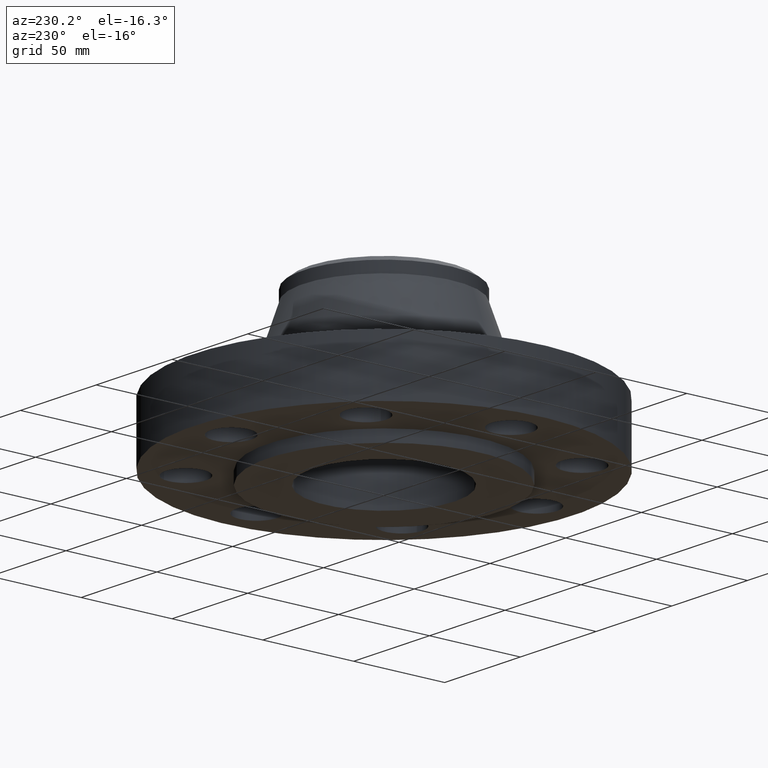
[diagram: clean part render]
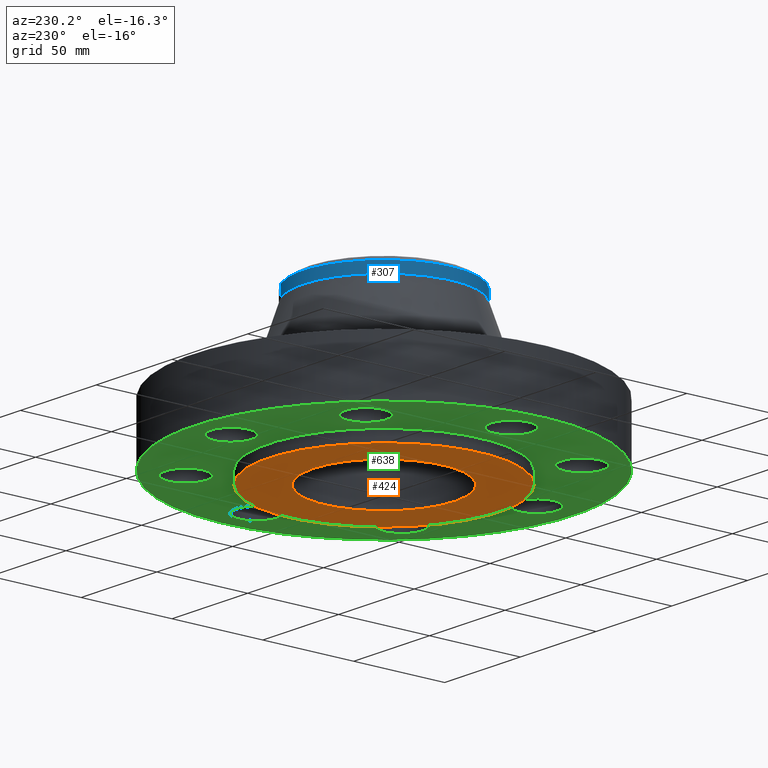
[diagram: same view with three faces highlighted in distinct colors, each labeled with its STEP entity id]
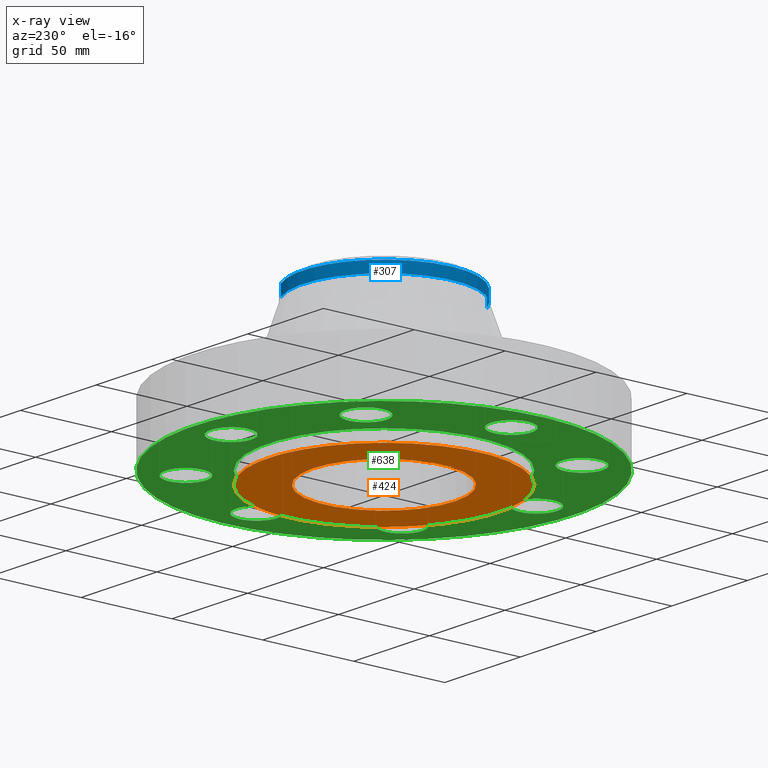
[diagram: x-ray of the same camera — body ghosted, the three highlighted faces saturated]
A machine part, auxiliary view with three faces highlighted in distinct colors.
The next image is the same camera in x-ray (body ghosted, the three faces saturated) — at least one of them is partly hidden behind the body in this view.
Their STEP definitions:

[orange] entity #424 — the highlighted planar face has unit normal (0, 0, -1).
#363=AXIS2_PLACEMENT_3D('Circle Axis2P3D',#361,#362,$) ;
#387=AXIS2_PLACEMENT_3D('Circle Axis2P3D',#385,#386,$) ;
#400=AXIS2_PLACEMENT_3D('Plane Axis2P3D',#397,#398,#399) ;
#404=AXIS2_PLACEMENT_3D('Circle Axis2P3D',#402,#403,$) ;
#413=AXIS2_PLACEMENT_3D('Circle Axis2P3D',#411,#412,$) ;
#358=CARTESIAN_POINT('Vertex',(0.735438776222,1.34621164995,-0.250000000001)) ;
#361=CARTESIAN_POINT('Axis2P3D Location',(0.,0.,-0.250000000001)) ;
#365=CARTESIAN_POINT('Vertex',(-0.735438776222,-1.34621164995,-0.250000000001)) ;
#385=CARTESIAN_POINT('Axis2P3D Location',(0.,0.,-0.250000000001)) ;
#397=CARTESIAN_POINT('Axis2P3D Location',(0.,1.53400000001,-0.250000000001)) ;
#402=CARTESIAN_POINT('Axis2P3D Location',(0.,0.,-0.250000000001)) ;
#406=CARTESIAN_POINT('Vertex',(-1.19856384652,-2.19395640473,-0.250000000001)) ;
#408=CARTESIAN_POINT('Vertex',(1.19856384652,2.19395640473,-0.250000000001)) ;
#411=CARTESIAN_POINT('Axis2P3D Location',(0.,0.,-0.250000000001)) ;
#362=DIRECTION('Axis2P3D Direction',(0.,0.,-0.0393700787402)) ;
#386=DIRECTION('Axis2P3D Direction',(0.,0.,-0.0393700787402)) ;
#398=DIRECTION('Axis2P3D Direction',(0.,0.,-0.0393700787402)) ;
#399=DIRECTION('Axis2P3D XDirection',(0.0393700787402,0.,0.)) ;
#403=DIRECTION('Axis2P3D Direction',(0.,0.,-0.0393700787402)) ;
#412=DIRECTION('Axis2P3D Direction',(0.,0.,-0.0393700787402)) ;
#417=ORIENTED_EDGE('',*,*,#410,.T.) ;
#418=ORIENTED_EDGE('',*,*,#415,.T.) ;
#421=ORIENTED_EDGE('',*,*,#367,.F.) ;
#422=ORIENTED_EDGE('',*,*,#389,.F.) ;
#423=FACE_BOUND('',#420,.T.) ;
#424=ADVANCED_FACE('PartBody',(#419,#423),#401,.T.) ;
#364=CIRCLE('generated circle',#363,1.53400000001) ;
#388=CIRCLE('generated circle',#387,1.53400000001) ;
#405=CIRCLE('generated circle',#404,2.50000000001) ;
#414=CIRCLE('generated circle',#413,2.50000000001) ;
#367=EDGE_CURVE('',#359,#366,#364,.T.) ;
#389=EDGE_CURVE('',#366,#359,#388,.T.) ;
#410=EDGE_CURVE('',#407,#409,#405,.T.) ;
#415=EDGE_CURVE('',#409,#407,#414,.T.) ;
#416=EDGE_LOOP('',(#417,#418)) ;
#420=EDGE_LOOP('',(#421,#422)) ;
#419=FACE_OUTER_BOUND('',#416,.T.) ;
#401=PLANE('',#400) ;
#359=VERTEX_POINT('',#358) ;
#366=VERTEX_POINT('',#365) ;
#407=VERTEX_POINT('',#406) ;
#409=VERTEX_POINT('',#408) ;

[blue] entity #307 — the highlighted cylindrical surface (partial cylindrical patch) has radius 44.45 mm, axis along (0, 0, -1).
#239=AXIS2_PLACEMENT_3D('Circle Axis2P3D',#237,#238,$) ;
#252=AXIS2_PLACEMENT_3D('Cylinder Axis2P3D',#249,#250,#251) ;
#290=AXIS2_PLACEMENT_3D('Circle Axis2P3D',#288,#289,$) ;
#297=AXIS2_PLACEMENT_3D('Circle Axis2P3D',#295,#296,$) ;
#215=CARTESIAN_POINT('Vertex',(0.838994692561,1.53576948331,2.90845634604)) ;
#222=CARTESIAN_POINT('Vertex',(-0.838994692561,-1.53576948331,2.90845634604)) ;
#237=CARTESIAN_POINT('Axis2P3D Location',(0.,0.,2.90845634604)) ;
#249=CARTESIAN_POINT('Axis2P3D Location',(0.,0.,1.50000000001)) ;
#254=CARTESIAN_POINT('Line Origine',(-0.838994692561,-1.53576948331,3.02656658226)) ;
#258=CARTESIAN_POINT('Vertex',(-0.838994692561,-1.53576948331,3.14467681848)) ;
#261=CARTESIAN_POINT('Line Origine',(0.838994692561,1.53576948331,3.02656658226)) ;
#265=CARTESIAN_POINT('Vertex',(0.838994692561,1.53576948331,3.14467681848)) ;
#288=CARTESIAN_POINT('Axis2P3D Location',(0.,0.,3.14467681848)) ;
#292=CARTESIAN_POINT('Vertex',(-0.838994692561,1.53576948331,3.14467681848)) ;
#295=CARTESIAN_POINT('Axis2P3D Location',(0.,0.,3.14467681848)) ;
#238=DIRECTION('Axis2P3D Direction',(0.,0.,-0.0393700787402)) ;
#250=DIRECTION('Axis2P3D Direction',(0.,0.,-0.0393700787402)) ;
#251=DIRECTION('Axis2P3D XDirection',(-0.0188750212049,-0.0345504945626,0.)) ;
#255=DIRECTION('Vector Direction',(0.,0.,-0.0393700787402)) ;
#262=DIRECTION('Vector Direction',(0.,0.,-0.0393700787402)) ;
#289=DIRECTION('Axis2P3D Direction',(0.,0.,-0.0393700787402)) ;
#296=DIRECTION('Axis2P3D Direction',(0.,0.,-0.0393700787402)) ;
#256=VECTOR('Line Direction',#255,0.0393700787402) ;
#263=VECTOR('Line Direction',#262,0.0393700787402) ;
#301=ORIENTED_EDGE('',*,*,#267,.F.) ;
#302=ORIENTED_EDGE('',*,*,#241,.F.) ;
#303=ORIENTED_EDGE('',*,*,#260,.T.) ;
#304=ORIENTED_EDGE('',*,*,#294,.F.) ;
#305=ORIENTED_EDGE('',*,*,#299,.T.) ;
#307=ADVANCED_FACE('PartBody',(#306),#253,.T.) ;
#240=CIRCLE('generated circle',#239,1.75000000001) ;
#291=CIRCLE('generated circle',#290,1.75000000001) ;
#298=CIRCLE('generated circle',#297,1.75000000001) ;
#253=CYLINDRICAL_SURFACE('generated cylinder',#252,1.75000000001) ;
#241=EDGE_CURVE('',#223,#216,#240,.T.) ;
#260=EDGE_CURVE('',#223,#259,#257,.F.) ;
#267=EDGE_CURVE('',#216,#266,#264,.F.) ;
#294=EDGE_CURVE('',#293,#259,#291,.F.) ;
#299=EDGE_CURVE('',#293,#266,#298,.T.) ;
#300=EDGE_LOOP('',(#301,#302,#303,#304,#305)) ;
#306=FACE_OUTER_BOUND('',#300,.T.) ;
#257=LINE('Line',#254,#256) ;
#264=LINE('Line',#261,#263) ;
#216=VERTEX_POINT('',#215) ;
#223=VERTEX_POINT('',#222) ;
#259=VERTEX_POINT('',#258) ;
#266=VERTEX_POINT('',#265) ;
#293=VERTEX_POINT('',#292) ;

[green] entity #638 — the highlighted planar face has unit normal (0, 0, -1).
#51=AXIS2_PLACEMENT_3D('Circle Axis2P3D',#49,#50,$) ;
#77=AXIS2_PLACEMENT_3D('Circle Axis2P3D',#75,#76,$) ;
#99=AXIS2_PLACEMENT_3D('Circle Axis2P3D',#97,#98,$) ;
#134=AXIS2_PLACEMENT_3D('Circle Axis2P3D',#132,#133,$) ;
#466=AXIS2_PLACEMENT_3D('Circle Axis2P3D',#464,#465,$) ;
#485=AXIS2_PLACEMENT_3D('Circle Axis2P3D',#483,#484,$) ;
#498=AXIS2_PLACEMENT_3D('Plane Axis2P3D',#495,#496,#497) ;
#514=AXIS2_PLACEMENT_3D('Circle Axis2P3D',#512,#513,$) ;
#523=AXIS2_PLACEMENT_3D('Circle Axis2P3D',#521,#522,$) ;
#532=AXIS2_PLACEMENT_3D('Circle Axis2P3D',#530,#531,$) ;
#541=AXIS2_PLACEMENT_3D('Circle Axis2P3D',#539,#540,$) ;
#550=AXIS2_PLACEMENT_3D('Circle Axis2P3D',#548,#549,$) ;
#559=AXIS2_PLACEMENT_3D('Circle Axis2P3D',#557,#558,$) ;
#568=AXIS2_PLACEMENT_3D('Circle Axis2P3D',#566,#567,$) ;
#577=AXIS2_PLACEMENT_3D('Circle Axis2P3D',#575,#576,$) ;
#586=AXIS2_PLACEMENT_3D('Circle Axis2P3D',#584,#585,$) ;
#595=AXIS2_PLACEMENT_3D('Circle Axis2P3D',#593,#594,$) ;
#604=AXIS2_PLACEMENT_3D('Circle Axis2P3D',#602,#603,$) ;
#613=AXIS2_PLACEMENT_3D('Circle Axis2P3D',#611,#612,$) ;
#622=AXIS2_PLACEMENT_3D('Circle Axis2P3D',#620,#621,$) ;
#631=AXIS2_PLACEMENT_3D('Circle Axis2P3D',#629,#630,$) ;
#44=CARTESIAN_POINT('Vertex',(2.92386367278,0.210947236987,0.)) ;
#49=CARTESIAN_POINT('Axis2P3D Location',(3.31000000001,0.,0.)) ;
#53=CARTESIAN_POINT('Vertex',(3.69613632725,-0.210947236987,0.)) ;
#75=CARTESIAN_POINT('Axis2P3D Location',(3.31000000001,0.,0.)) ;
#97=CARTESIAN_POINT('Axis2P3D Location',(0.,0.,0.)) ;
#101=CARTESIAN_POINT('Vertex',(-1.97763034675,-3.62002806781,2.79741234551E-016)) ;
#103=CARTESIAN_POINT('Vertex',(1.97763034675,3.62002806781,2.79741234551E-016)) ;
#132=CARTESIAN_POINT('Axis2P3D Location',(0.,0.,0.)) ;
#461=CARTESIAN_POINT('Vertex',(-1.19856384652,-2.19395640473,2.79741234551E-016)) ;
#464=CARTESIAN_POINT('Axis2P3D Location',(0.,0.,2.79741234551E-016)) ;
#468=CARTESIAN_POINT('Vertex',(1.19856384652,2.19395640473,2.79741234551E-016)) ;
#483=CARTESIAN_POINT('Axis2P3D Location',(0.,0.,2.79741234551E-016)) ;
#495=CARTESIAN_POINT('Axis2P3D Location',(0.,2.50000000001,0.)) ;
#512=CARTESIAN_POINT('Axis2P3D Location',(2.34052344574,-2.34052344574,0.)) ;
#516=CARTESIAN_POINT('Vertex',(2.21664605203,-1.91832160854,0.)) ;
#518=CARTESIAN_POINT('Vertex',(2.46440083944,-2.76272528293,0.)) ;
#521=CARTESIAN_POINT('Axis2P3D Location',(2.34052344574,-2.34052344574,0.)) ;
#530=CARTESIAN_POINT('Axis2P3D Location',(-4.54579506146E-016,-3.31000000001,0.)) ;
#534=CARTESIAN_POINT('Vertex',(0.210947236987,-2.92386367278,0.)) ;
#536=CARTESIAN_POINT('Vertex',(-0.210947236987,-3.69613632725,0.)) ;
#539=CARTESIAN_POINT('Axis2P3D Location',(-5.24514814784E-016,-3.31000000001,0.)) ;
#548=CARTESIAN_POINT('Axis2P3D Location',(-2.34052344574,-2.34052344574,0.)) ;
#552=CARTESIAN_POINT('Vertex',(-1.91832160854,-2.21664605203,0.)) ;
#554=CARTESIAN_POINT('Vertex',(-2.76272528293,-2.46440083944,0.)) ;
#557=CARTESIAN_POINT('Axis2P3D Location',(-2.34052344574,-2.34052344574,0.)) ;
#566=CARTESIAN_POINT('Axis2P3D Location',(-3.31000000001,-8.39223703654E-016,0.)) ;
#570=CARTESIAN_POINT('Vertex',(-2.92386367278,-0.210947236987,0.)) ;
#572=CARTESIAN_POINT('Vertex',(-3.69613632725,0.210947236987,0.)) ;
#575=CARTESIAN_POINT('Axis2P3D Location',(-3.31000000001,-2.79741234551E-016,0.)) ;
#584=CARTESIAN_POINT('Axis2P3D Location',(-2.34052344574,2.34052344574,0.)) ;
#588=CARTESIAN_POINT('Vertex',(-2.21664605203,1.91832160854,0.)) ;
#590=CARTESIAN_POINT('Vertex',(-2.46440083944,2.76272528293,0.)) ;
#593=CARTESIAN_POINT('Axis2P3D Location',(-2.34052344574,2.34052344574,0.)) ;
#602=CARTESIAN_POINT('Axis2P3D Location',(-6.2941777774E-016,3.31000000001,0.)) ;
#606=CARTESIAN_POINT('Vertex',(-0.210947236987,2.92386367278,0.)) ;
#608=CARTESIAN_POINT('Vertex',(0.210947236987,3.69613632725,0.)) ;
#611=CARTESIAN_POINT('Axis2P3D Location',(-7.34320740697E-016,3.31000000001,0.)) ;
#620=CARTESIAN_POINT('Axis2P3D Location',(2.34052344574,2.34052344574,0.)) ;
#624=CARTESIAN_POINT('Vertex',(1.91832160854,2.21664605203,0.)) ;
#626=CARTESIAN_POINT('Vertex',(2.76272528293,2.46440083944,0.)) ;
#629=CARTESIAN_POINT('Axis2P3D Location',(2.34052344574,2.34052344574,0.)) ;
#50=DIRECTION('Axis2P3D Direction',(0.,-0.,-0.0393700787402)) ;
#76=DIRECTION('Axis2P3D Direction',(0.,-0.,-0.0393700787402)) ;
#98=DIRECTION('Axis2P3D Direction',(0.,0.,-0.0393700787402)) ;
#133=DIRECTION('Axis2P3D Direction',(0.,0.,-0.0393700787402)) ;
#465=DIRECTION('Axis2P3D Direction',(0.,0.,-0.0393700787402)) ;
#484=DIRECTION('Axis2P3D Direction',(0.,0.,-0.0393700787402)) ;
#496=DIRECTION('Axis2P3D Direction',(0.,0.,-0.0393700787402)) ;
#497=DIRECTION('Axis2P3D XDirection',(0.0393700787402,0.,0.)) ;
#513=DIRECTION('Axis2P3D Direction',(0.,0.,-0.0393700787402)) ;
#522=DIRECTION('Axis2P3D Direction',(0.,0.,-0.0393700787402)) ;
#531=DIRECTION('Axis2P3D Direction',(0.,0.,-0.0393700787402)) ;
#540=DIRECTION('Axis2P3D Direction',(0.,0.,-0.0393700787402)) ;
#549=DIRECTION('Axis2P3D Direction',(0.,0.,-0.0393700787402)) ;
#558=DIRECTION('Axis2P3D Direction',(0.,0.,-0.0393700787402)) ;
#567=DIRECTION('Axis2P3D Direction',(0.,0.,-0.0393700787402)) ;
#576=DIRECTION('Axis2P3D Direction',(0.,0.,-0.0393700787402)) ;
#585=DIRECTION('Axis2P3D Direction',(0.,0.,-0.0393700787402)) ;
#594=DIRECTION('Axis2P3D Direction',(0.,0.,-0.0393700787402)) ;
#603=DIRECTION('Axis2P3D Direction',(0.,0.,-0.0393700787402)) ;
#612=DIRECTION('Axis2P3D Direction',(0.,0.,-0.0393700787402)) ;
#621=DIRECTION('Axis2P3D Direction',(0.,0.,-0.0393700787402)) ;
#630=DIRECTION('Axis2P3D Direction',(0.,0.,-0.0393700787402)) ;
#501=ORIENTED_EDGE('',*,*,#105,.T.) ;
#502=ORIENTED_EDGE('',*,*,#136,.T.) ;
#505=ORIENTED_EDGE('',*,*,#79,.F.) ;
#506=ORIENTED_EDGE('',*,*,#55,.F.) ;
#509=ORIENTED_EDGE('',*,*,#487,.F.) ;
#510=ORIENTED_EDGE('',*,*,#470,.F.) ;
#527=ORIENTED_EDGE('',*,*,#520,.F.) ;
#528=ORIENTED_EDGE('',*,*,#525,.F.) ;
#545=ORIENTED_EDGE('',*,*,#538,.F.) ;
#546=ORIENTED_EDGE('',*,*,#543,.F.) ;
#563=ORIENTED_EDGE('',*,*,#556,.F.) ;
#564=ORIENTED_EDGE('',*,*,#561,.F.) ;
#581=ORIENTED_EDGE('',*,*,#574,.F.) ;
#582=ORIENTED_EDGE('',*,*,#579,.F.) ;
#599=ORIENTED_EDGE('',*,*,#592,.F.) ;
#600=ORIENTED_EDGE('',*,*,#597,.F.) ;
#617=ORIENTED_EDGE('',*,*,#610,.F.) ;
#618=ORIENTED_EDGE('',*,*,#615,.F.) ;
#635=ORIENTED_EDGE('',*,*,#628,.F.) ;
#636=ORIENTED_EDGE('',*,*,#633,.F.) ;
#507=FACE_BOUND('',#504,.T.) ;
#511=FACE_BOUND('',#508,.T.) ;
#529=FACE_BOUND('',#526,.T.) ;
#547=FACE_BOUND('',#544,.T.) ;
#565=FACE_BOUND('',#562,.T.) ;
#583=FACE_BOUND('',#580,.T.) ;
#601=FACE_BOUND('',#598,.T.) ;
#619=FACE_BOUND('',#616,.T.) ;
#637=FACE_BOUND('',#634,.T.) ;
#638=ADVANCED_FACE('PartBody',(#503,#507,#511,#529,#547,#565,#583,#601,#619,#637),#499,.T.) ;
#52=CIRCLE('generated circle',#51,0.440000000002) ;
#78=CIRCLE('generated circle',#77,0.440000000002) ;
#100=CIRCLE('generated circle',#99,4.12500000002) ;
#135=CIRCLE('generated circle',#134,4.12500000002) ;
#467=CIRCLE('generated circle',#466,2.50000000001) ;
#486=CIRCLE('generated circle',#485,2.50000000001) ;
#515=CIRCLE('generated circle',#514,0.440000000002) ;
#524=CIRCLE('generated circle',#523,0.440000000002) ;
#533=CIRCLE('generated circle',#532,0.440000000002) ;
#542=CIRCLE('generated circle',#541,0.440000000002) ;
#551=CIRCLE('generated circle',#550,0.440000000002) ;
#560=CIRCLE('generated circle',#559,0.440000000002) ;
#569=CIRCLE('generated circle',#568,0.440000000002) ;
#578=CIRCLE('generated circle',#577,0.440000000002) ;
#587=CIRCLE('generated circle',#586,0.440000000002) ;
#596=CIRCLE('generated circle',#595,0.440000000002) ;
#605=CIRCLE('generated circle',#604,0.440000000002) ;
#614=CIRCLE('generated circle',#613,0.440000000002) ;
#623=CIRCLE('generated circle',#622,0.440000000002) ;
#632=CIRCLE('generated circle',#631,0.440000000002) ;
#55=EDGE_CURVE('',#45,#54,#52,.T.) ;
#79=EDGE_CURVE('',#54,#45,#78,.T.) ;
#105=EDGE_CURVE('',#102,#104,#100,.T.) ;
#136=EDGE_CURVE('',#104,#102,#135,.T.) ;
#470=EDGE_CURVE('',#462,#469,#467,.T.) ;
#487=EDGE_CURVE('',#469,#462,#486,.T.) ;
#520=EDGE_CURVE('',#517,#519,#515,.T.) ;
#525=EDGE_CURVE('',#519,#517,#524,.T.) ;
#538=EDGE_CURVE('',#535,#537,#533,.T.) ;
#543=EDGE_CURVE('',#537,#535,#542,.T.) ;
#556=EDGE_CURVE('',#553,#555,#551,.T.) ;
#561=EDGE_CURVE('',#555,#553,#560,.T.) ;
#574=EDGE_CURVE('',#571,#573,#569,.T.) ;
#579=EDGE_CURVE('',#573,#571,#578,.T.) ;
#592=EDGE_CURVE('',#589,#591,#587,.T.) ;
#597=EDGE_CURVE('',#591,#589,#596,.T.) ;
#610=EDGE_CURVE('',#607,#609,#605,.T.) ;
#615=EDGE_CURVE('',#609,#607,#614,.T.) ;
#628=EDGE_CURVE('',#625,#627,#623,.T.) ;
#633=EDGE_CURVE('',#627,#625,#632,.T.) ;
#500=EDGE_LOOP('',(#501,#502)) ;
#504=EDGE_LOOP('',(#505,#506)) ;
#508=EDGE_LOOP('',(#509,#510)) ;
#526=EDGE_LOOP('',(#527,#528)) ;
#544=EDGE_LOOP('',(#545,#546)) ;
#562=EDGE_LOOP('',(#563,#564)) ;
#580=EDGE_LOOP('',(#581,#582)) ;
#598=EDGE_LOOP('',(#599,#600)) ;
#616=EDGE_LOOP('',(#617,#618)) ;
#634=EDGE_LOOP('',(#635,#636)) ;
#503=FACE_OUTER_BOUND('',#500,.T.) ;
#499=PLANE('',#498) ;
#45=VERTEX_POINT('',#44) ;
#54=VERTEX_POINT('',#53) ;
#102=VERTEX_POINT('',#101) ;
#104=VERTEX_POINT('',#103) ;
#462=VERTEX_POINT('',#461) ;
#469=VERTEX_POINT('',#468) ;
#517=VERTEX_POINT('',#516) ;
#519=VERTEX_POINT('',#518) ;
#535=VERTEX_POINT('',#534) ;
#537=VERTEX_POINT('',#536) ;
#553=VERTEX_POINT('',#552) ;
#555=VERTEX_POINT('',#554) ;
#571=VERTEX_POINT('',#570) ;
#573=VERTEX_POINT('',#572) ;
#589=VERTEX_POINT('',#588) ;
#591=VERTEX_POINT('',#590) ;
#607=VERTEX_POINT('',#606) ;
#609=VERTEX_POINT('',#608) ;
#625=VERTEX_POINT('',#624) ;
#627=VERTEX_POINT('',#626) ;